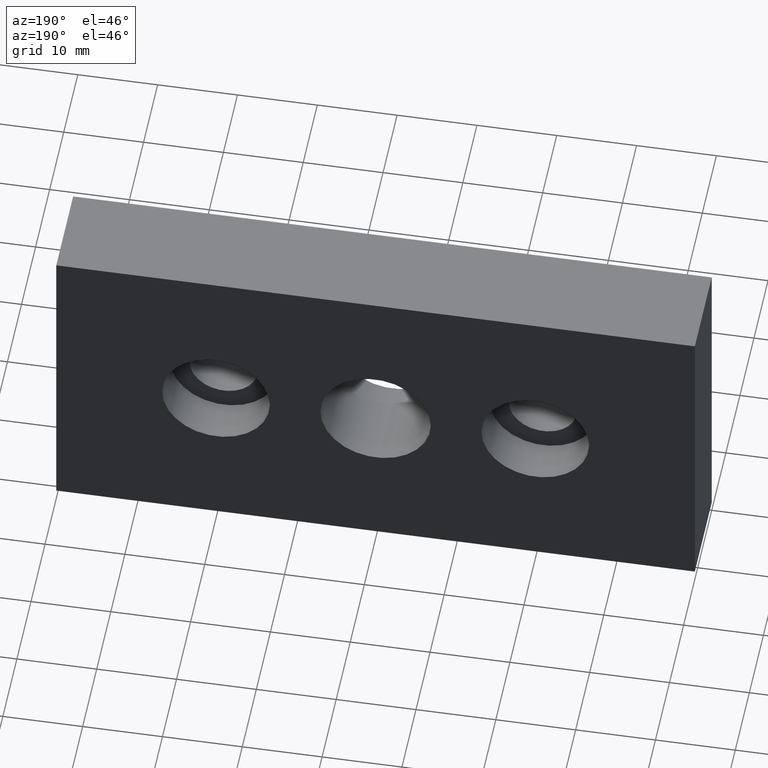
[diagram: clean part render]
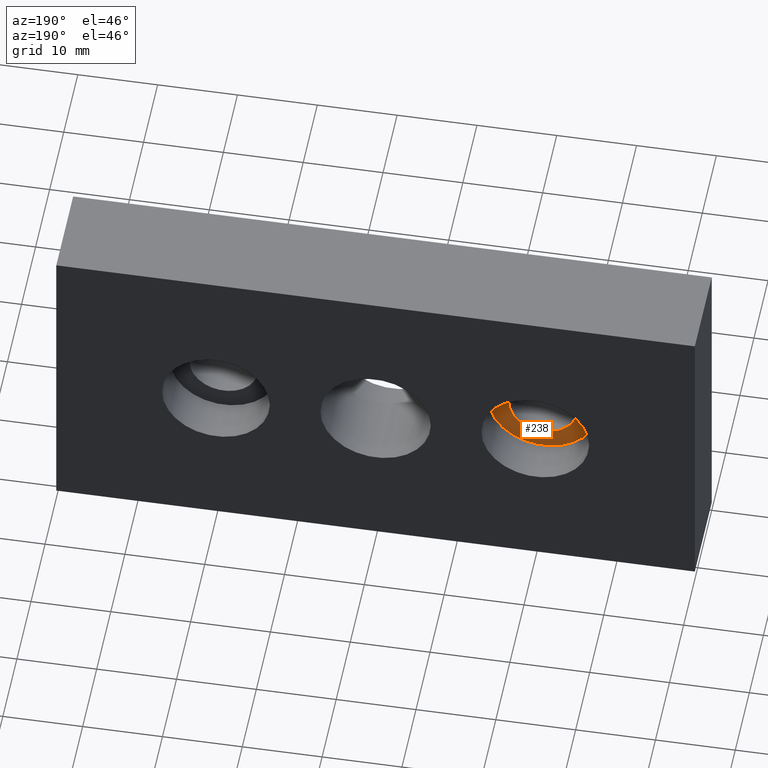
[diagram: same view with one face highlighted and labeled with its STEP entity id]
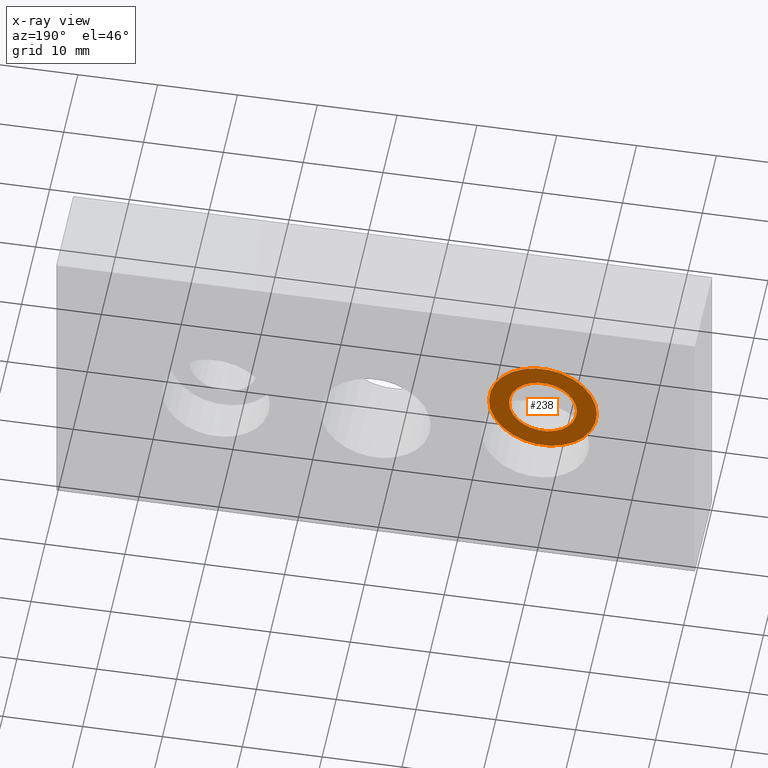
[diagram: x-ray of the same camera — body ghosted, the highlighted face saturated]
A machine part, auxiliary view. The second image highlights one B-rep face of the part: STEP entity #238.
The next image is the same camera in x-ray: the body ghosted, the highlighted face saturated — about 0% of this face is hidden behind the body in this view.
In plain terms, the highlighted planar face has unit normal (0, 1, 0).
Its self-contained STEP definition (entity closure, byte-faithful):
#54=FACE_BOUND('',#76,.T.);
#62=FACE_OUTER_BOUND('',#75,.T.);
#75=EDGE_LOOP('',(#166,#167));
#76=EDGE_LOOP('',(#168));
#96=CIRCLE('',#272,6.75);
#97=CIRCLE('',#273,6.75);
#98=CIRCLE('',#274,4.25);
#111=VERTEX_POINT('',#376);
#112=VERTEX_POINT('',#377);
#113=VERTEX_POINT('',#380);
#134=EDGE_CURVE('',#111,#112,#96,.T.);
#135=EDGE_CURVE('',#112,#111,#97,.T.);
#136=EDGE_CURVE('',#113,#113,#98,.T.);
#166=ORIENTED_EDGE('',*,*,#134,.T.);
#167=ORIENTED_EDGE('',*,*,#135,.T.);
#168=ORIENTED_EDGE('',*,*,#136,.F.);
#230=PLANE('',#271);
#238=ADVANCED_FACE('',(#62,#54),#230,.T.);
#271=AXIS2_PLACEMENT_3D('',#375,#301,#302);
#272=AXIS2_PLACEMENT_3D('',#378,#303,#304);
#273=AXIS2_PLACEMENT_3D('',#379,#305,#306);
#274=AXIS2_PLACEMENT_3D('',#381,#307,#308);
#301=DIRECTION('center_axis',(0.,1.,0.));
#302=DIRECTION('ref_axis',(1.,0.,0.));
#303=DIRECTION('center_axis',(0.,1.,0.));
#304=DIRECTION('ref_axis',(1.,0.,0.));
#305=DIRECTION('center_axis',(0.,1.,0.));
#306=DIRECTION('ref_axis',(1.,0.,0.));
#307=DIRECTION('center_axis',(0.,1.,0.));
#308=DIRECTION('ref_axis',(1.,0.,0.));
#375=CARTESIAN_POINT('Origin',(-20.,6.5,0.));
#376=CARTESIAN_POINT('',(-13.25,6.5,0.));
#377=CARTESIAN_POINT('',(-26.75,6.5,8.26636589424463E-16));
#378=CARTESIAN_POINT('Origin',(-20.,6.5,0.));
#379=CARTESIAN_POINT('Origin',(-20.,6.5,0.));
#380=CARTESIAN_POINT('',(-24.25,6.49999999999999,5.20474889637625E-16));
#381=CARTESIAN_POINT('Origin',(-20.,6.49999999999999,0.));